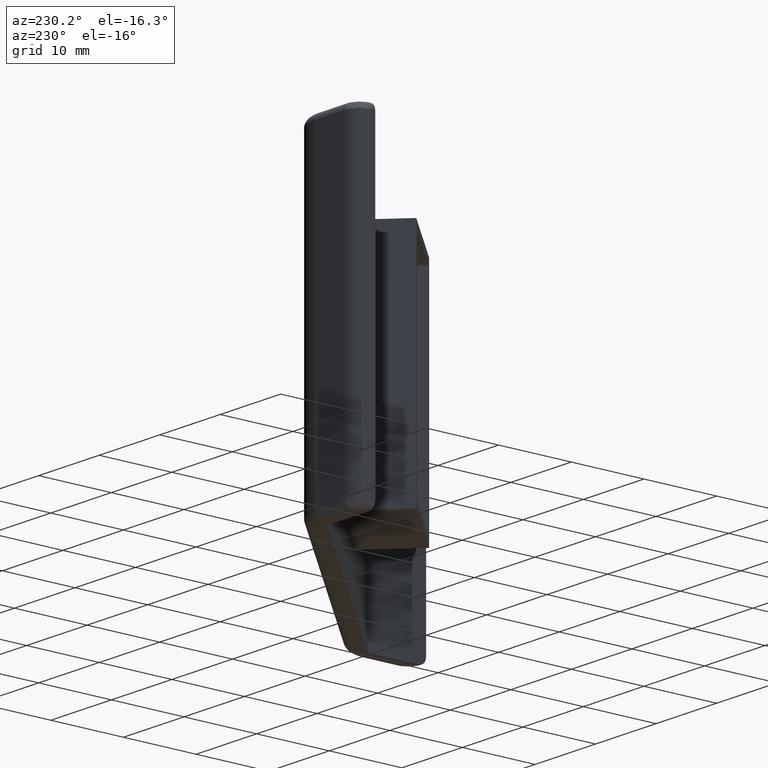
[diagram: clean part render]
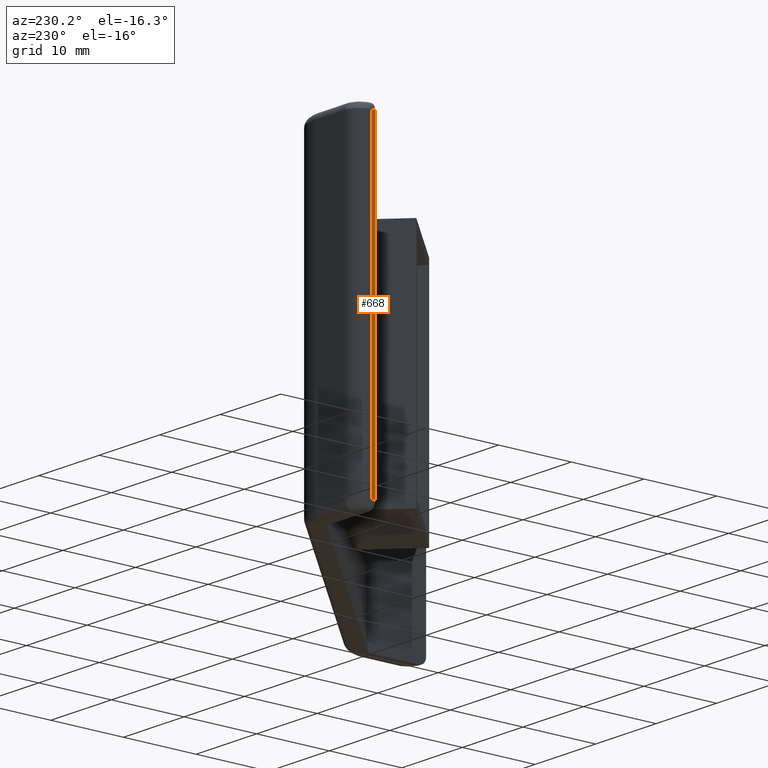
[diagram: same view with one face highlighted and labeled with its STEP entity id]
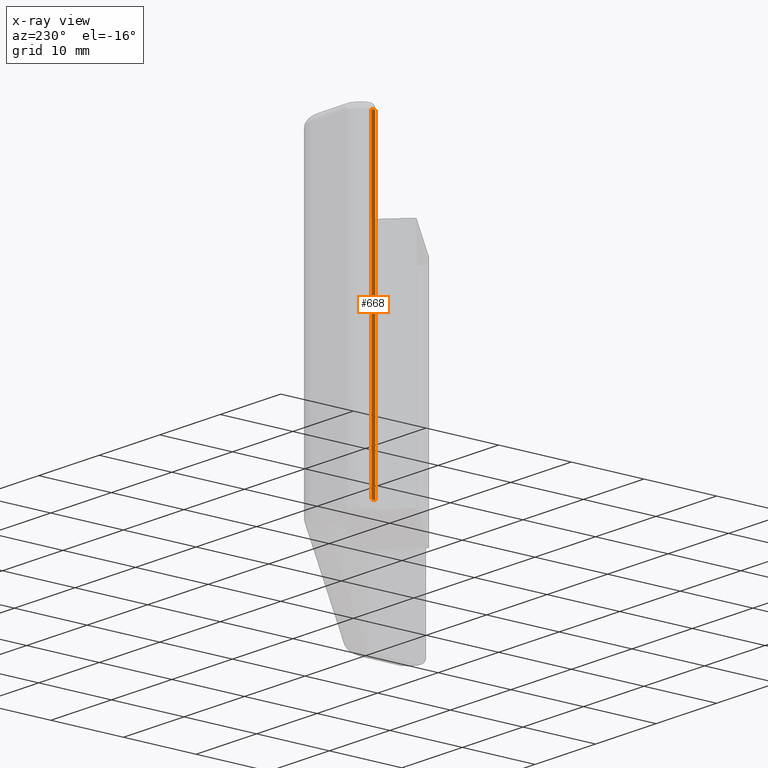
[diagram: x-ray of the same camera — body ghosted, the highlighted face saturated]
A machine part, auxiliary view. The second image highlights one B-rep face of the part: STEP entity #668.
The next image is the same camera in x-ray: the body ghosted, the highlighted face saturated — about 0% of this face is hidden behind the body in this view.
In plain terms, the highlighted planar face has unit normal (1, 0, 0).
Its self-contained STEP definition (entity closure, byte-faithful):
#48=FACE_OUTER_BOUND('',#91,.T.);
#91=EDGE_LOOP('',(#490,#491,#492,#493));
#160=LINE('',#1078,#222);
#161=LINE('',#1080,#223);
#162=LINE('',#1082,#224);
#163=LINE('',#1083,#225);
#222=VECTOR('',#844,43.);
#223=VECTOR('',#845,0.499999999999998);
#224=VECTOR('',#846,43.);
#225=VECTOR('',#847,0.499999999999998);
#324=VERTEX_POINT('',#1076);
#325=VERTEX_POINT('',#1077);
#326=VERTEX_POINT('',#1079);
#327=VERTEX_POINT('',#1081);
#388=EDGE_CURVE('',#324,#325,#160,.T.);
#389=EDGE_CURVE('',#324,#326,#161,.T.);
#390=EDGE_CURVE('',#326,#327,#162,.T.);
#391=EDGE_CURVE('',#327,#325,#163,.T.);
#490=ORIENTED_EDGE('',*,*,#388,.F.);
#491=ORIENTED_EDGE('',*,*,#389,.T.);
#492=ORIENTED_EDGE('',*,*,#390,.T.);
#493=ORIENTED_EDGE('',*,*,#391,.T.);
#648=PLANE('',#720);
#668=ADVANCED_FACE('',(#48),#648,.F.);
#720=AXIS2_PLACEMENT_3D('',#1075,#842,#843);
#842=DIRECTION('center_axis',(1.,1.71444889535133E-16,0.));
#843=DIRECTION('ref_axis',(-1.71444889535133E-16,1.,0.));
#844=DIRECTION('',(0.,0.,-1.));
#845=DIRECTION('',(-1.71444889535133E-16,1.,0.));
#846=DIRECTION('',(0.,0.,-1.));
#847=DIRECTION('',(1.71444889535133E-16,-1.,0.));
#1075=CARTESIAN_POINT('Origin',(0.,44.5,22.5));
#1076=CARTESIAN_POINT('',(4.28612223837832E-16,42.,21.5));
#1077=CARTESIAN_POINT('',(4.28612223837832E-16,42.,-21.5));
#1078=CARTESIAN_POINT('',(4.28612223837832E-16,42.,22.5));
#1079=CARTESIAN_POINT('',(3.42889779070266E-16,42.5,21.5));
#1080=CARTESIAN_POINT('',(3.42889779070265E-16,42.5,21.5));
#1081=CARTESIAN_POINT('',(3.42889779070266E-16,42.5,-21.5));
#1082=CARTESIAN_POINT('',(3.42889779070266E-16,42.5,22.5));
#1083=CARTESIAN_POINT('',(0.,44.5,-21.5));